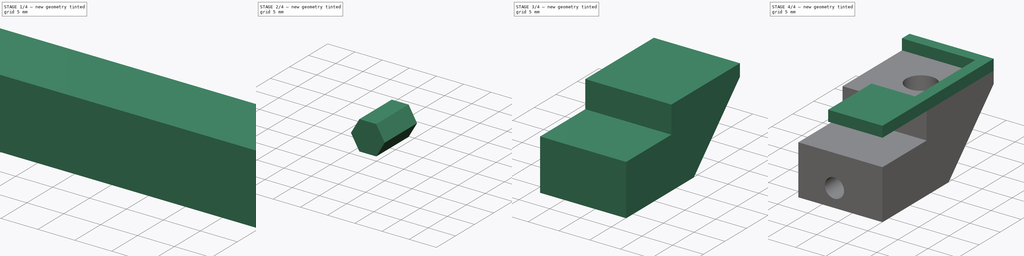
[diagram: build sequence overview — one tinted view per stage of 4, left to right]
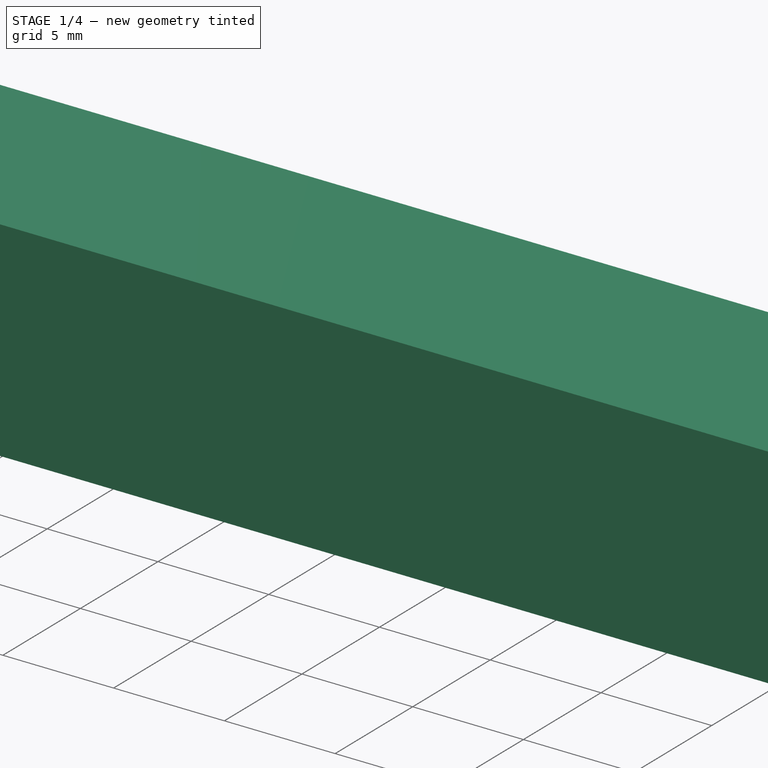
[diagram: stage 1 of 4 — iso view after this stage's code; geometry added in this stage tinted green]
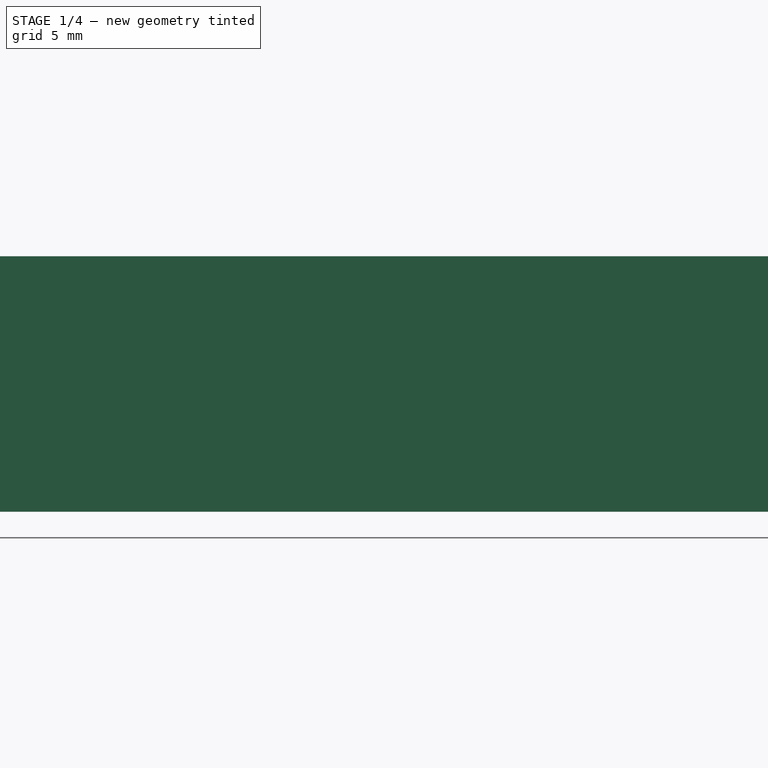
[diagram: stage 1 of 4 — front view after this stage's code; geometry added in this stage tinted green]
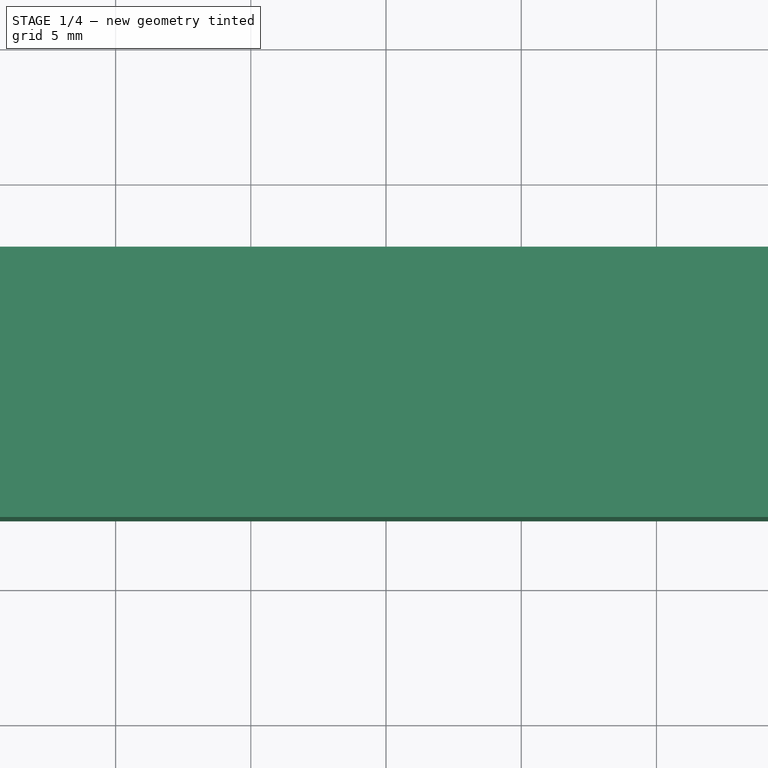
[diagram: stage 1 of 4 — top view after this stage's code; geometry added in this stage tinted green]
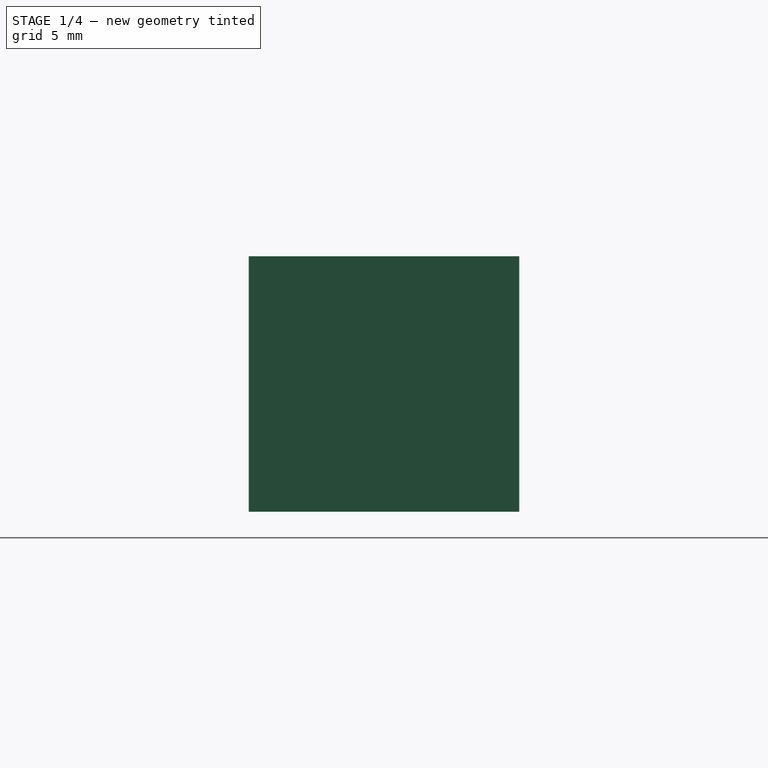
[diagram: stage 1 of 4 — right view after this stage's code; geometry added in this stage tinted green]
FCSTD DOCUMENT  (FreeCAD 1.0R39319 (Git))
Label: cartridge90
License: All rights reserved
LicenseURL: https://en.wikipedia.org/wiki/All_rights_reserved
objects: Sketcher::SketchObject×10, Part::Extrusion×10, Part::MultiFuse×1, Part::Cut×1
note: 32 computed .brp shape members not serialized (recipe doc carries the construction recipe); baked Part::Feature solids carry a one-line shape summary decoded from their .brp

FEATURE [Sketcher::SketchObject] Sketch
  ArcFitTolerance = 1e-06
  FullyConstrained = true
  MakeInternals = false
  sketch-geometry (8):
    g0: Circle CenterX=0 CenterY=0 CenterZ=0 NormalX=0 NormalY=0 NormalZ=1 AngleXU=0 Radius=1.6
    g1: LineSegment StartX=-3.81 StartY=6.9575 StartZ=0 EndX=-3.81 EndY=-6.9575 EndZ=0
    g2: LineSegment StartX=-3.81 StartY=-6.9575 StartZ=0 EndX=73.66 EndY=-6.9575 EndZ=0
    g3: LineSegment StartX=73.66 StartY=-6.9575 StartZ=0 EndX=73.66 EndY=6.9575 EndZ=0
    g4: LineSegment StartX=73.66 StartY=6.9575 StartZ=0 EndX=-3.81 EndY=6.9575 EndZ=0
    g5: LineSegment [constr] StartX=0 StartY=0 StartZ=0 EndX=-3.81 EndY=0 EndZ=0
    g6: Circle CenterX=69.85 CenterY=0 CenterZ=0 NormalX=0 NormalY=0 NormalZ=1 AngleXU=0 Radius=1.6
    g7: LineSegment [constr] StartX=69.85 StartY=0 StartZ=0 EndX=73.66 EndY=0 EndZ=0
  constraints (22):
    c: Diameter(g0) = 3.2
    c: Coincident(g0,g-1)
    c: Coincident(g1,g2)
    c: Coincident(g2,g3)
    c: Coincident(g3,g4)
    c: Coincident(g4,g1)
    c: Vertical(g1)
    c: Vertical(g3)
    c: Horizontal(g2)
    c: Horizontal(g4)
    c: Distance(g1,g3) = 77.47
    c: Distance(g2,g4) = 13.915
    c: Coincident(g5,g0)
    c: Symmetric(g1,g1,g5)
    c: Horizontal(g5)
    c: DistanceX(g5,g5) = 3.81
    c: Equal(g6,g0)
    c: Coincident(g7,g6)
    c: PointOnObject(g7,g3)
    c: Horizontal(g7)
    c: Equal(g7,g5)
    c: Horizontal(g7,g5)
FEATURE [Part::Extrusion] Extrude
  Base = -> Sketch
  Dir = (0,0,1)
  DirMode = 2
  FaceMakerClass = Part::FaceMakerBullseye
  FaceMakerMode = 3
  LengthFwd = 1.6
  LengthRev = 0
  Solid = true
  Symmetric = false
FEATURE [Sketcher::SketchObject] Sketch001
  ArcFitTolerance = 1e-06
  AttachmentSupport = -> [Extrude]
  ExternalGeometry = -> [Extrude]
  FullyConstrained = true
  MakeInternals = false
  MapMode = 5
  Placement = pos=(0,0,1.6) rot=(0,0,1;0rad)
  sketch-geometry (6):
    g0: LineSegment StartX=3.725 StartY=4.725 StartZ=0 EndX=3.725 EndY=-4.725 EndZ=0
    g1: LineSegment StartX=3.725 StartY=-4.725 StartZ=0 EndX=66.125 EndY=-4.725 EndZ=0
    g2: LineSegment StartX=66.125 StartY=-4.725 StartZ=0 EndX=66.125 EndY=4.725 EndZ=0
    g3: LineSegment StartX=66.125 StartY=4.725 StartZ=0 EndX=3.725 EndY=4.725 EndZ=0
    g4: LineSegment [constr] StartX=34.925 StartY=4.725 StartZ=0 EndX=34.925 EndY=6.9575 EndZ=0
    g5: LineSegment [constr] StartX=3.725 StartY=-3e-16 StartZ=0 EndX=-3.81 EndY=-3e-16 EndZ=0
  constraints (16):
    c: Coincident(g0,g1)
    c: Coincident(g1,g2)
    c: Coincident(g2,g3)
    c: Coincident(g3,g0)
    c: Vertical(g0)
    c: Vertical(g2)
    c: Horizontal(g1)
    c: Horizontal(g3)
    c: DistanceX(g3,g3) = 62.4
    c: Symmetric(g3,g3,g4)
    c: Symmetric(g0,g0,g5)
    c: Symmetric(g-4,g-3,g4)
    c: Symmetric(g-4,g-4,g5)
    c: Vertical(g4)
    c: Horizontal(g5)
    c: DistanceY(g0,g0) = 9.45
FEATURE [Part::Extrusion] Extrude001
  Base = -> Sketch001
  Dir = (0,0,1)
  DirMode = 2
  FaceMakerClass = Part::FaceMakerBullseye
  FaceMakerMode = 3
  LengthFwd = 10
  LengthRev = 0
  Solid = true
  Symmetric = false
FEATURE [Sketcher::SketchObject] Sketch002
  ArcFitTolerance = 1e-06
  AttachmentOffset = pos=(0,0,0.5) rot=(0,0,1;0rad)
  AttachmentSupport = -> [Extrude]
  ExternalGeometry = -> [Extrude001,Extrude]
  FullyConstrained = true
  MakeInternals = false
  MapMode = 5
  Placement = pos=(0,-7.4575,1e-16) rot=(1,0,0;1.5708rad)
  sketch-geometry (5):
    g0: LineSegment StartX=3.725 StartY=5.525 StartZ=0 EndX=3.725 EndY=-3.925 EndZ=0
    g1: LineSegment StartX=3.725 StartY=-3.925 StartZ=0 EndX=66.125 EndY=-3.925 EndZ=0
    g2: LineSegment StartX=66.125 StartY=-3.925 StartZ=0 EndX=66.125 EndY=5.525 EndZ=0
    g3: LineSegment StartX=66.125 StartY=5.525 StartZ=0 EndX=3.725 EndY=5.525 EndZ=0
    g4: LineSegment [constr] StartX=3.725 StartY=0.8 StartZ=0 EndX=-3.81 EndY=0.8 EndZ=0
  constraints (14):
    c: Coincident(g0,g1)
    c: Coincident(g1,g2)
    c: Coincident(g2,g3)
    c: Coincident(g3,g0)
    c: Vertical(g0)
    c: Vertical(g2)
    c: Horizontal(g1)
    c: Horizontal(g3)
    c: Distance(g0,g2) = 62.4
    c: Distance(g1,g3) = 9.45
    c: Vertical(g0,g-3)
    c: Symmetric(g0,g0,g4)
    c: Symmetric(g-4,g-4,g4)
    c: Horizontal(g4)
FEATURE [Part::Extrusion] Extrude002
  Base = -> Sketch002
  Dir = (0,-1,2e-16)
  DirMode = 2
  FaceMakerClass = Part::FaceMakerBullseye
  FaceMakerMode = 3
  LengthFwd = 10
  LengthRev = 0
  Solid = true
  Symmetric = false
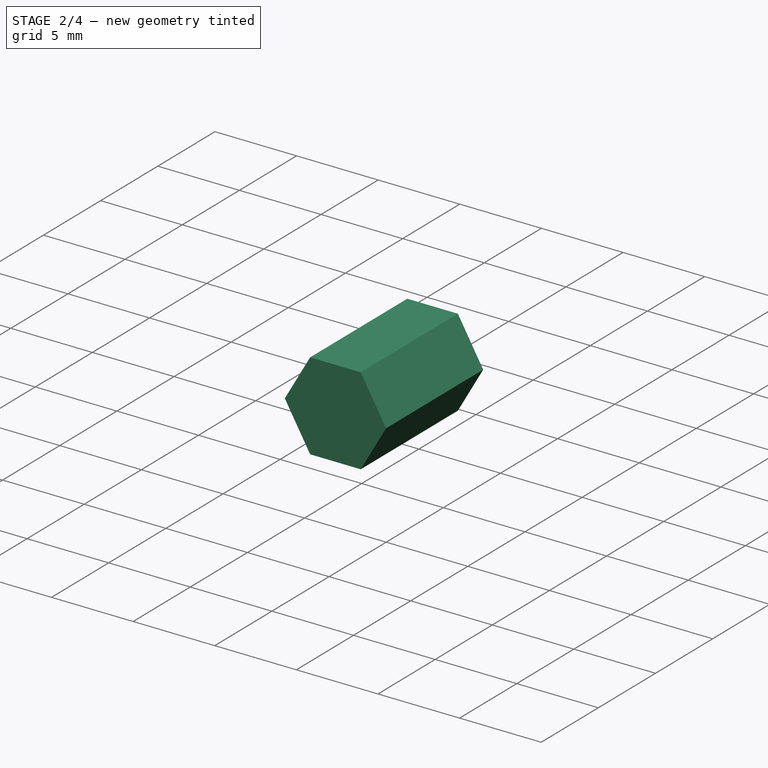
[diagram: stage 2 of 4 — iso view after this stage's code; geometry added in this stage tinted green]
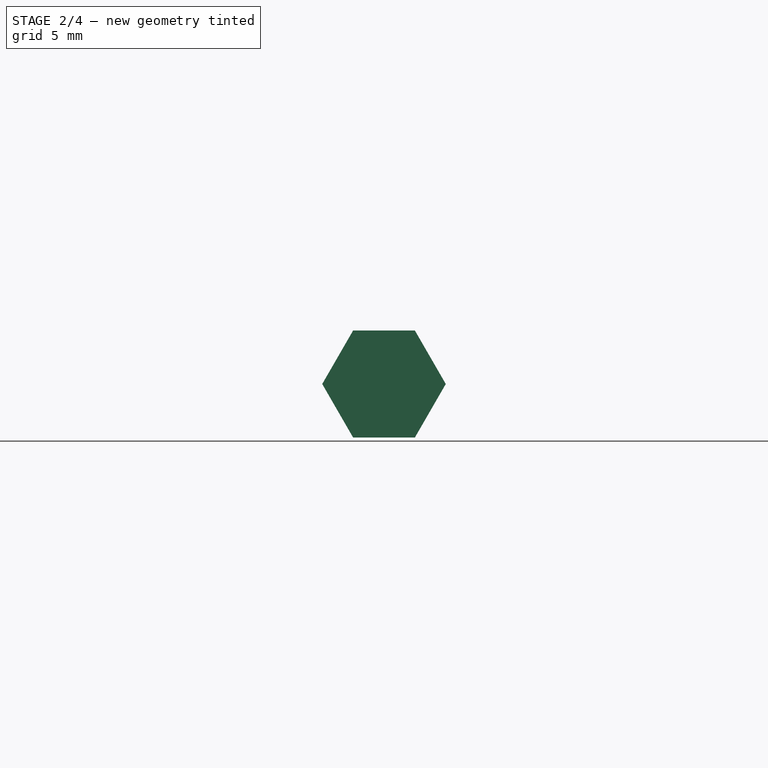
[diagram: stage 2 of 4 — front view after this stage's code; geometry added in this stage tinted green]
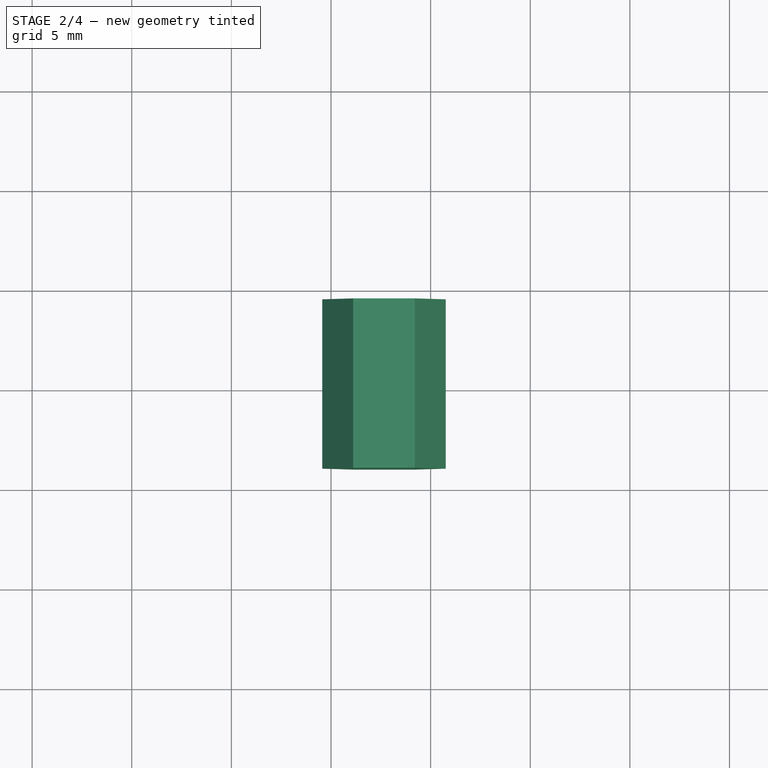
[diagram: stage 2 of 4 — top view after this stage's code; geometry added in this stage tinted green]
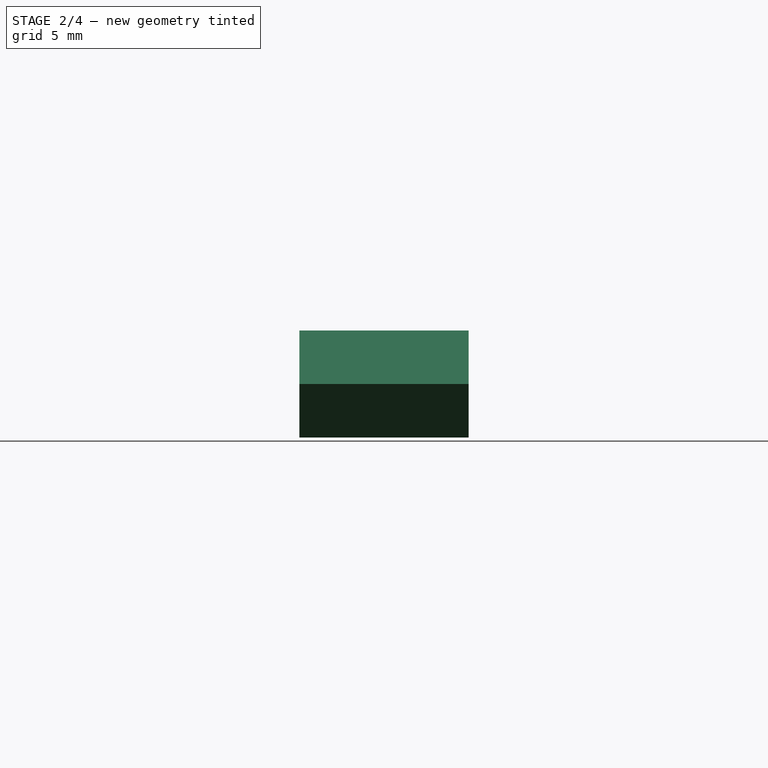
[diagram: stage 2 of 4 — right view after this stage's code; geometry added in this stage tinted green]
FEATURE [Sketcher::SketchObject] Sketch003
  ArcFitTolerance = 1e-06
  AttachmentSupport = -> [Extrude002]
  ExternalGeometry = -> [Extrude002]
  FullyConstrained = true
  MakeInternals = false
  MapMode = 5
  Placement = pos=(0,-17.4575,0) rot=(1,0,0;1.5708rad)
  sketch-geometry (15):
    g0: LineSegment StartX=-15.075 StartY=26.075 StartZ=0 EndX=-15.075 EndY=-63.925 EndZ=0
    g1: LineSegment StartX=-15.075 StartY=-63.925 StartZ=0 EndX=84.925 EndY=-63.925 EndZ=0
    g2: LineSegment StartX=84.925 StartY=-63.925 StartZ=0 EndX=84.925 EndY=26.075 EndZ=0
    g3: LineSegment StartX=84.925 StartY=26.075 StartZ=0 EndX=-15.075 EndY=26.075 EndZ=0
    g4: LineSegment [constr] StartX=34.925 StartY=-3.925 StartZ=0 EndX=34.925 EndY=-63.925 EndZ=0
    g5: Circle CenterX=2.19 CenterY=11.3 CenterZ=0 NormalX=0 NormalY=0 NormalZ=1 AngleXU=0 Radius=1.6
    g6: Circle CenterX=2.19 CenterY=-9.7 CenterZ=0 NormalX=0 NormalY=0 NormalZ=1 AngleXU=0 Radius=1.6
    g7: Circle CenterX=67.66 CenterY=11.3 CenterZ=0 NormalX=0 NormalY=0 NormalZ=1 AngleXU=0 Radius=1.6
    g8: Circle CenterX=67.66 CenterY=-9.7 CenterZ=0 NormalX=0 NormalY=0 NormalZ=1 AngleXU=0 Radius=1.6
    g9: LineSegment [constr] StartX=2.19 StartY=11.3 StartZ=0 EndX=2.19 EndY=-9.7 EndZ=0
    g10: LineSegment [constr] StartX=2.19 StartY=-9.7 StartZ=0 EndX=67.66 EndY=-9.7 EndZ=0
    g11: LineSegment [constr] StartX=67.66 StartY=-9.7 StartZ=0 EndX=67.66 EndY=11.3 EndZ=0
    g12: LineSegment [constr] StartX=67.66 StartY=11.3 StartZ=0 EndX=2.19 EndY=11.3 EndZ=0
    g13: LineSegment [constr] StartX=34.925 StartY=-3.925 StartZ=0 EndX=34.925 EndY=11.3 EndZ=0
    g14: LineSegment [constr] StartX=3.725 StartY=0.8 StartZ=0 EndX=2.19 EndY=0.8 EndZ=0
  constraints (38):
    c: Coincident(g0,g1)
    c: Coincident(g1,g2)
    c: Coincident(g2,g3)
    c: Coincident(g3,g0)
    c: Vertical(g0)
    c: Vertical(g2)
    c: Horizontal(g1)
    c: Horizontal(g3)
    c: Distance(g0,g2) = 100
    c: Distance(g1,g3) = 90
    c: Symmetric(g-3,g-3,g4)
    c: Symmetric(g1,g1,g4)
    c: Vertical(g4)
    c: DistanceY(g4,g4) = 60
    c: Coincident(g9,g10)
    c: Coincident(g10,g11)
    c: Coincident(g11,g12)
    c: Coincident(g12,g9)
    c: Vertical(g9)
    c: Vertical(g11)
    c: Horizontal(g10)
    c: Horizontal(g12)
    c: Coincident(g9,g5)
    c: Coincident(g10,g8)
    c: Coincident(g7,g11)
    c: Coincident(g9,g6)
    c: Diameter(g5) = 3.2
    c: Equal(g5,g6)
    c: Equal(g6,g7)
    c: Equal(g7,g8)
    c: DistanceX(g12,g12) = 65.47
    c: DistanceY(g9,g9) = 21
    c: Coincident(g13,g4)
    c: Symmetric(g12,g12,g13)
    c: Symmetric(g-4,g-4,g14)
    c: Symmetric(g9,g9,g14)
    c: Vertical(g13)
    c: Horizontal(g14)
FEATURE [Part::Extrusion] Extrude003
  Base = -> Sketch003
  Dir = (0,-1,2e-16)
  DirMode = 2
  FaceMakerClass = Part::FaceMakerBullseye
  FaceMakerMode = 3
  LengthFwd = 1.6
  LengthRev = 0
  Solid = true
  Symmetric = false
FEATURE [Sketcher::SketchObject] Sketch008
  ArcFitTolerance = 1e-06
  AttachmentSupport = -> [Extrude004]
  ExternalGeometry = -> [Extrude,Extrude003]
  FullyConstrained = true
  MakeInternals = false
  MapMode = 5
  Placement = pos=(0,-17.4575,0) rot=(1,0,0;1.5708rad)
  sketch-geometry (1):
    g0: Circle CenterX=67.66 CenterY=-9.7 CenterZ=0 NormalX=0 NormalY=0 NormalZ=1 AngleXU=0 Radius=1.6
  constraints (2):
    c: Coincident(g0,g-4)
    c: Equal(g-4,g0)
FEATURE [Part::Extrusion] Extrude008
  Base = -> Sketch008
  Dir = (0,-1,2e-16)
  DirMode = 2
  FaceMakerClass = Part::FaceMakerBullseye
  FaceMakerMode = 3
  LengthFwd = 0
  LengthRev = 22
  Solid = true
  Symmetric = false
FEATURE [Sketcher::SketchObject] Sketch009
  ArcFitTolerance = 1e-06
  AttachmentSupport = -> [Extrude008]
  ExternalGeometry = -> [Extrude008]
  FullyConstrained = true
  MakeInternals = false
  MapMode = 5
  Placement = pos=(0,4.5425,-1.5e-15) rot=(0,0.707107,0.707107;3.14159rad)
  sketch-geometry (7):
    g0: LineSegment StartX=-64.56 StartY=-9.7 StartZ=0 EndX=-66.11 EndY=-7.01532 EndZ=0
    g1: LineSegment StartX=-66.11 StartY=-7.01532 StartZ=0 EndX=-69.21 EndY=-7.01532 EndZ=0
    g2: LineSegment StartX=-69.21 StartY=-7.01532 StartZ=0 EndX=-70.76 EndY=-9.7 EndZ=0
    g3: LineSegment StartX=-70.76 StartY=-9.7 StartZ=0 EndX=-69.21 EndY=-12.3847 EndZ=0
    g4: LineSegment StartX=-69.21 StartY=-12.3847 StartZ=0 EndX=-66.11 EndY=-12.3847 EndZ=0
    g5: LineSegment StartX=-66.11 StartY=-12.3847 StartZ=0 EndX=-64.56 EndY=-9.7 EndZ=0
    g6: Circle [constr] CenterX=-67.66 CenterY=-9.7 CenterZ=0 NormalX=0 NormalY=0 NormalZ=1 AngleXU=0 Radius=3.1
  constraints (16):
    c: Coincident(g0,g1)
    c: Coincident(g1,g2)
    c: Coincident(g2,g3)
    c: Coincident(g3,g4)
    c: Coincident(g4,g5)
    c: Coincident(g5,g0)
    c: Equal(g0, g1-g5) x5
    c: PointOnObject(g0,g6)
    c: PointOnObject(g1,g6)
    c: PointOnObject(g2,g6)
    c: PointOnObject(g3,g6)
    c: PointOnObject(g4,g6)
    c: PointOnObject(g5,g6)
    c: Coincident(g6,g-3)
    c: Horizontal(g1)
    c: Diameter(g6) = 6.2
FEATURE [Part::Extrusion] Extrude009
  Base = -> Sketch009
  Dir = (0,1,-2e-16)
  DirMode = 2
  FaceMakerClass = Part::FaceMakerBullseye
  FaceMakerMode = 3
  LengthFwd = 0
  LengthRev = 8.5
  Solid = true
  Symmetric = false
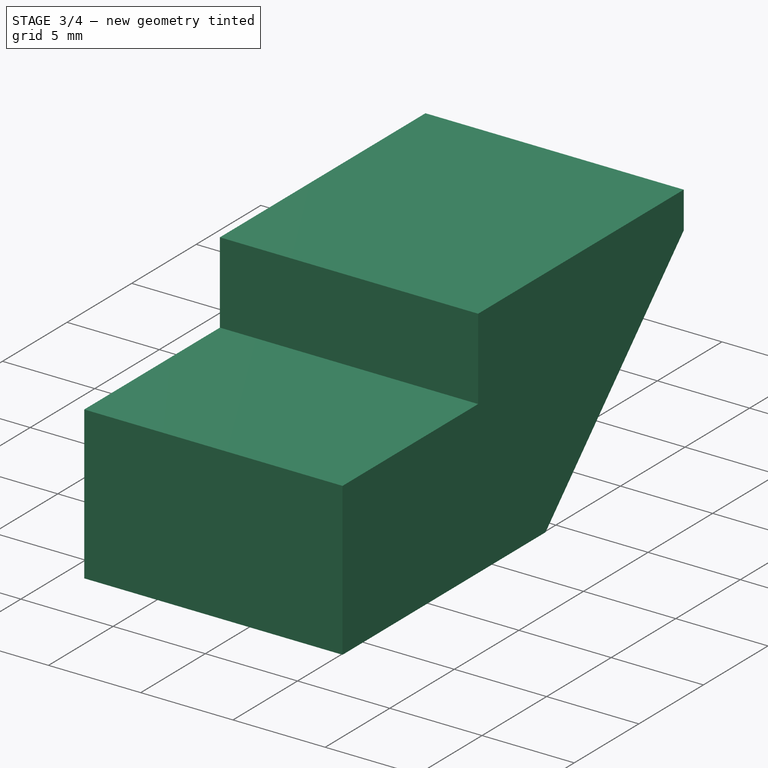
[diagram: stage 3 of 4 — iso view after this stage's code; geometry added in this stage tinted green]
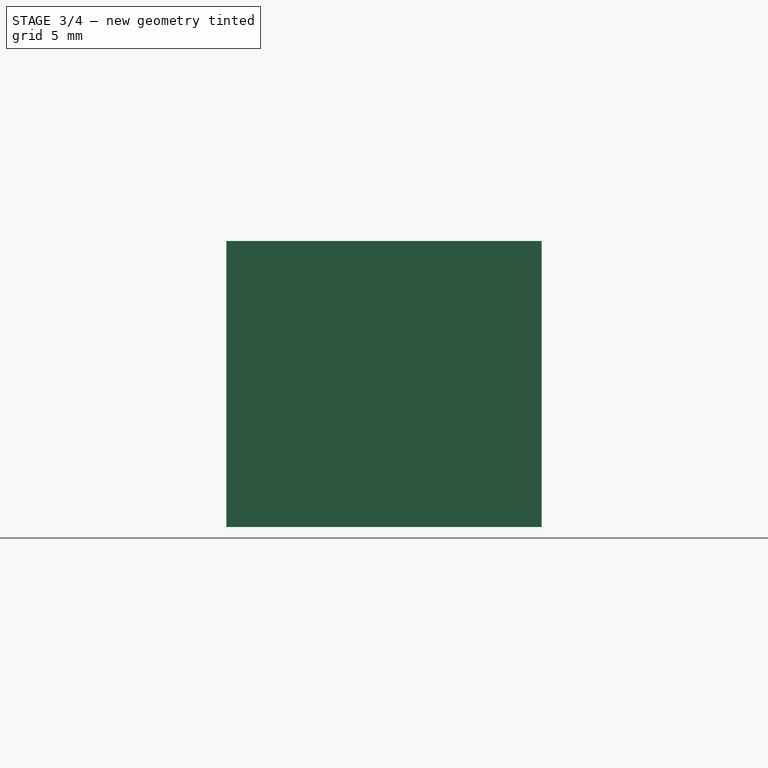
[diagram: stage 3 of 4 — front view after this stage's code; geometry added in this stage tinted green]
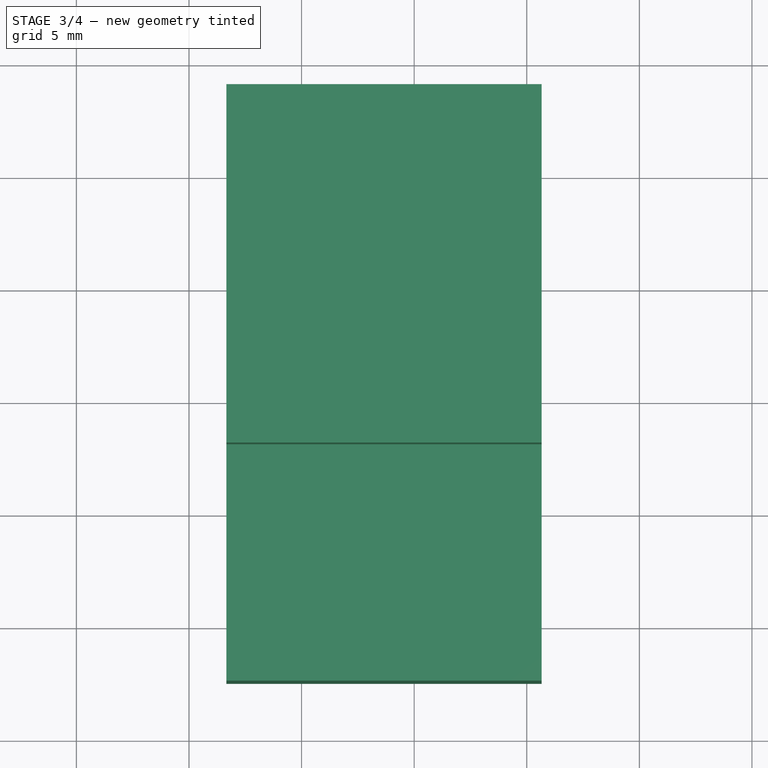
[diagram: stage 3 of 4 — top view after this stage's code; geometry added in this stage tinted green]
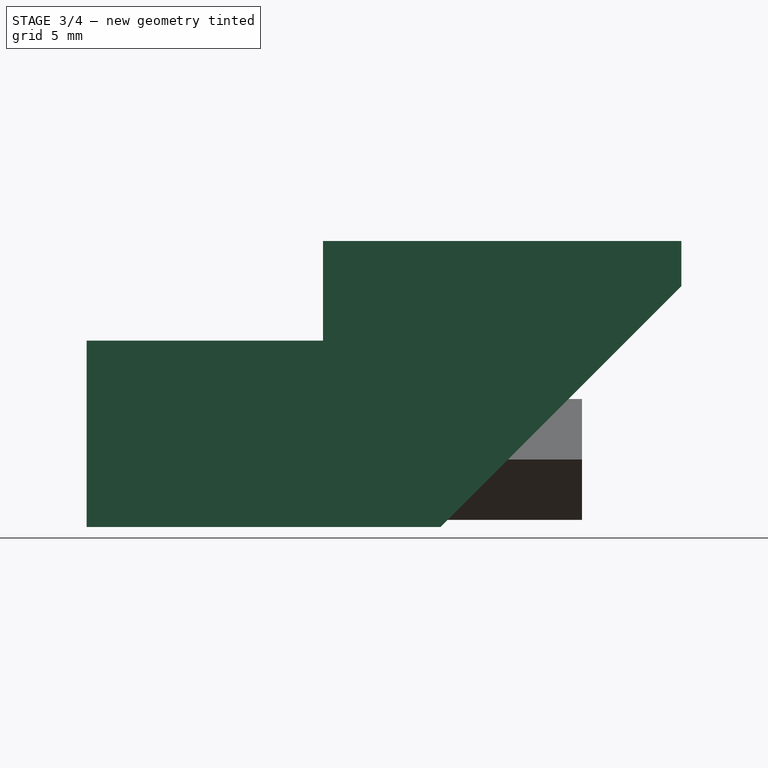
[diagram: stage 3 of 4 — right view after this stage's code; geometry added in this stage tinted green]
FEATURE [Sketcher::SketchObject] Sketch004
  ArcFitTolerance = 1e-06
  AttachmentSupport = -> [Extrude]
  ExternalGeometry = -> [Extrude,Extrude002,Extrude003]
  FullyConstrained = true
  MakeInternals = false
  MapMode = 5
  Placement = pos=(73.66,0,0) rot=(0.57735,0.57735,0.57735;2.0944rad)
  sketch-geometry (10):
    g0: LineSegment StartX=8.9575 StartY=0 StartZ=0 EndX=8.9575 EndY=-2 EndZ=0
    g1: LineSegment StartX=8.9575 StartY=-2 StartZ=0 EndX=-1.7425 EndY=-12.7 EndZ=0
    g2: LineSegment StartX=-1.7425 StartY=-12.7 StartZ=0 EndX=-17.4575 EndY=-12.7 EndZ=0
    g3: LineSegment StartX=-17.4575 StartY=-12.7 StartZ=0 EndX=-17.4575 EndY=-4.425 EndZ=0
    g4: LineSegment StartX=-17.4575 StartY=-4.425 StartZ=0 EndX=-6.9575 EndY=-4.425 EndZ=0
    g5: LineSegment StartX=-6.9575 StartY=-4.425 StartZ=0 EndX=-6.9575 EndY=0 EndZ=0
    g6: LineSegment StartX=-6.9575 StartY=0 StartZ=0 EndX=8.9575 EndY=0 EndZ=0
    g7: LineSegment [constr] StartX=-7.4575 StartY=0 StartZ=0 EndX=-6.9575 EndY=0 EndZ=0
    g8: LineSegment [constr] StartX=-7.4575 StartY=-3.925 StartZ=0 EndX=-7.4575 EndY=-4.425 EndZ=0
    g9: LineSegment [constr] StartX=-6.9575 StartY=0.8 StartZ=0 EndX=-6.9575 EndY=-12.7 EndZ=0
  constraints (30):
    c: Vertical(g0)
    c: Coincident(g1,g0)
    c: Coincident(g2,g1)
    c: Coincident(g3,g2)
    c: Coincident(g4,g3)
    c: Coincident(g5,g4)
    c: Vertical(g5)
    c: Coincident(g6,g5)
    c: Coincident(g6,g0)
    c: Horizontal(g-4,g0)
    c: Horizontal(g6)
    c: Vertical(g-3,g5)
    c: Vertical(g3)
    c: Horizontal(g4)
    c: PointOnObject(g7,g-5)
    c: Coincident(g7,g5)
    c: Horizontal(g7)
    c: Coincident(g8,g-5)
    c: PointOnObject(g8,g4)
    c: Vertical(g8)
    c: Equal(g8,g7)
    c: PointOnObject(g3,g-6)
    c: Symmetric(g-7,g-7,g9)
    c: PointOnObject(g9,g2)
    c: Vertical(g9)
    c: DistanceY(g9,g9) = 13.5
    c: Horizontal(g2)
    c: Angle(g1,g2) = 2.35619
    c: DistanceX(g-4,g0) = 2
    c: DistanceY(g0,g0) = 2
FEATURE [Part::Extrusion] Extrude004
  Base = -> Sketch004
  Dir = (1,0,0)
  DirMode = 2
  FaceMakerClass = Part::FaceMakerBullseye
  FaceMakerMode = 3
  LengthFwd = 2
  LengthRev = 12
  Solid = true
  Symmetric = false
FEATURE [Sketcher::SketchObject] Sketch007
  ArcFitTolerance = 1e-06
  AttachmentSupport = -> [Extrude004]
  ExternalGeometry = -> [Extrude]
  FullyConstrained = true
  MakeInternals = false
  MapMode = 5
  sketch-geometry (1):
    g0: Circle CenterX=69.85 CenterY=0 CenterZ=0 NormalX=0 NormalY=0 NormalZ=1 AngleXU=0 Radius=2.5
  constraints (2):
    c: Coincident(g0,g-3)
    c: Diameter(g0) = 5
FEATURE [Part::Extrusion] Extrude007
  Base = -> Sketch007
  Dir = (0,0,1)
  DirMode = 2
  FaceMakerClass = Part::FaceMakerBullseye
  FaceMakerMode = 3
  LengthFwd = 0
  LengthRev = 6
  Solid = true
  Symmetric = false
FEATURE [Part::MultiFuse] Fusion
  Refine = true
  Shapes = -> [Extrude007,Extrude008,Extrude009]
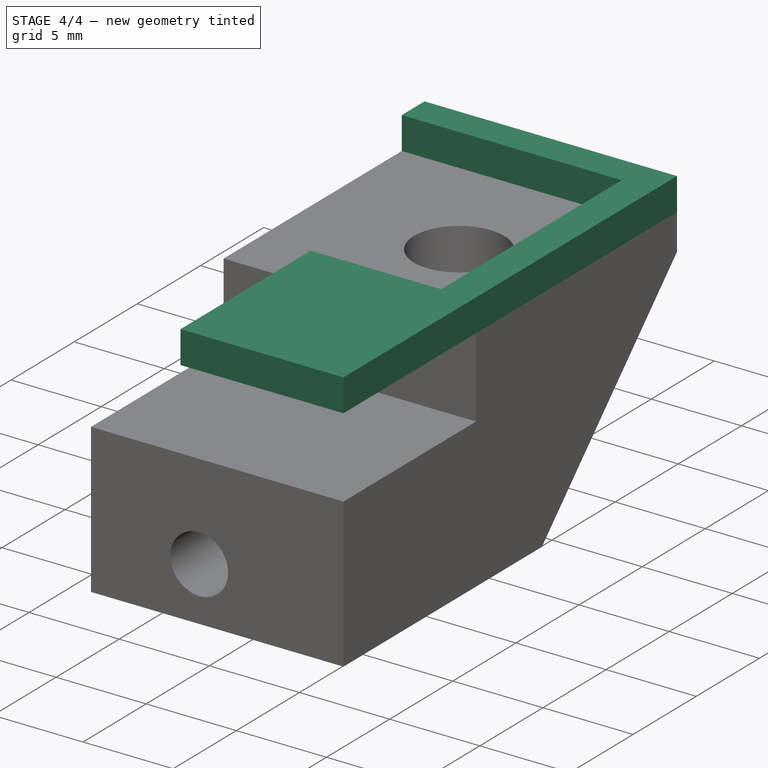
[diagram: stage 4 of 4 — iso view after this stage's code; geometry added in this stage tinted green]
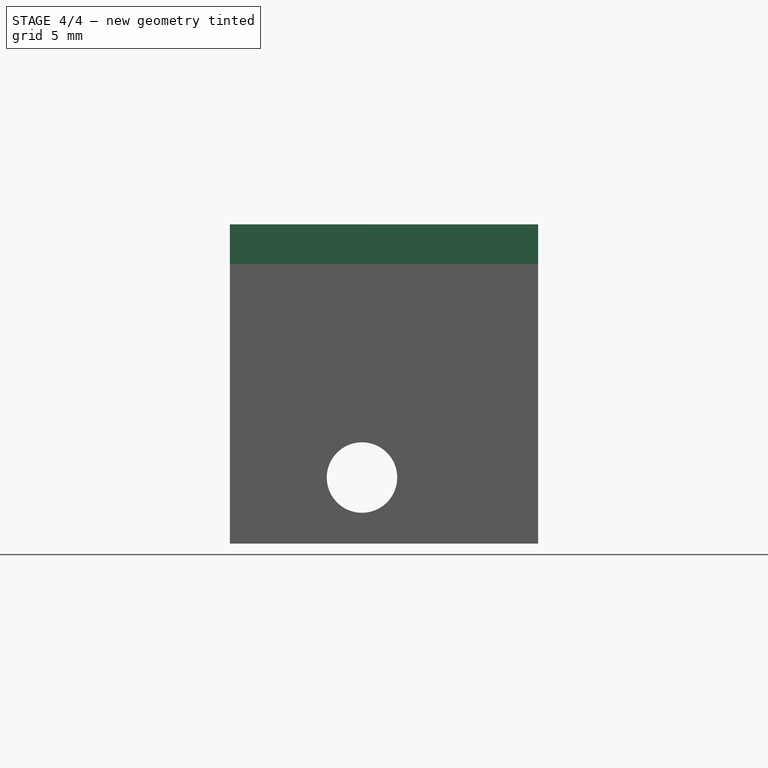
[diagram: stage 4 of 4 — front view after this stage's code; geometry added in this stage tinted green]
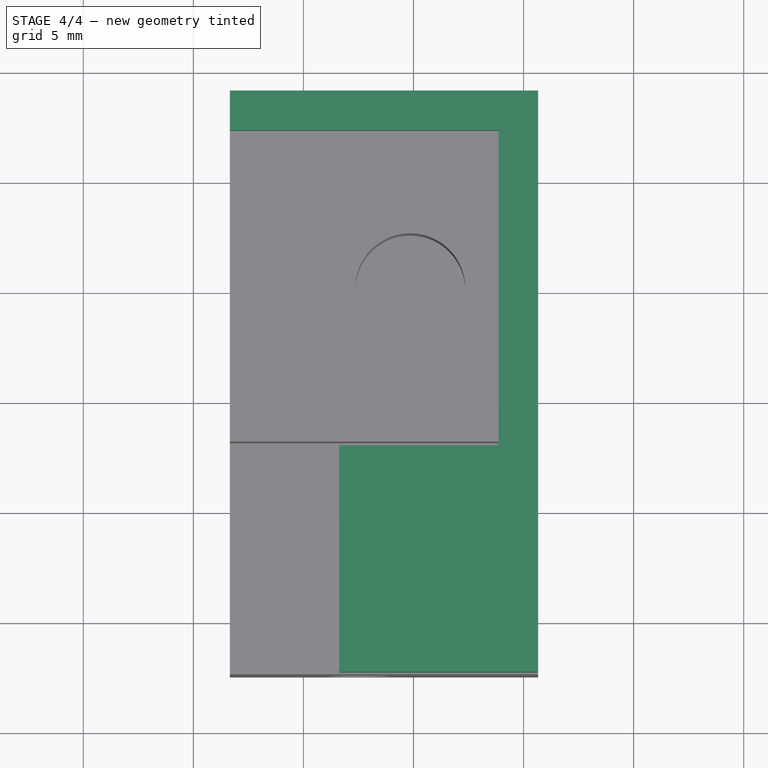
[diagram: stage 4 of 4 — top view after this stage's code; geometry added in this stage tinted green]
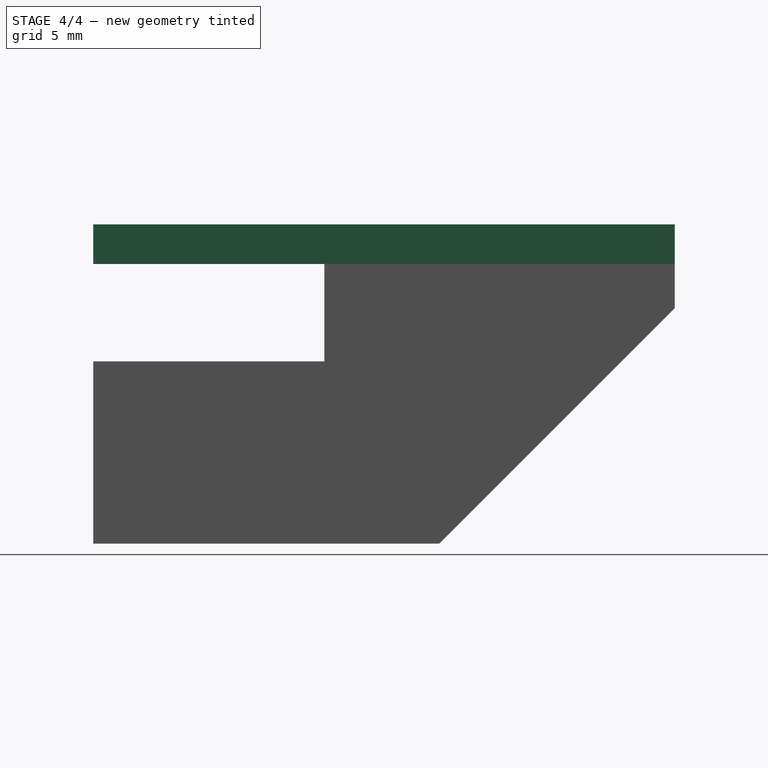
[diagram: stage 4 of 4 — right view after this stage's code; geometry added in this stage tinted green]
FEATURE [Sketcher::SketchObject] Sketch005
  ArcFitTolerance = 1e-06
  AttachmentSupport = -> [Extrude004]
  ExternalGeometry = -> [Extrude004,Extrude002]
  FullyConstrained = true
  MakeInternals = false
  MapMode = 5
  Placement = pos=(0,0,-4.425) rot=(0,0,1;0rad)
  sketch-geometry (4):
    g0: LineSegment StartX=66.625 StartY=-17.4575 StartZ=0 EndX=75.66 EndY=-17.4575 EndZ=0
    g1: LineSegment StartX=75.66 StartY=-17.4575 StartZ=0 EndX=75.66 EndY=-6.9575 EndZ=0
    g2: LineSegment StartX=75.66 StartY=-6.9575 StartZ=0 EndX=66.625 EndY=-6.9575 EndZ=0
    g3: LineSegment StartX=66.625 StartY=-6.9575 StartZ=0 EndX=66.625 EndY=-17.4575 EndZ=0
  constraints (11):
    c: Coincident(g0,g1)
    c: Coincident(g1,g2)
    c: Coincident(g2,g3)
    c: Coincident(g3,g0)
    c: Horizontal(g0)
    c: Horizontal(g2)
    c: Vertical(g1)
    c: Vertical(g3)
    c: Coincident(g0,g-3)
    c: DistanceX(g-4,g0) = 0.5
    c: Horizontal(g-3,g1)
FEATURE [Part::Extrusion] Extrude005
  Base = -> Sketch005
  Dir = (0,0,1)
  DirMode = 2
  FaceMakerClass = Part::FaceMakerBullseye
  FaceMakerMode = 3
  LengthFwd = 4.43
  LengthRev = 0
  Solid = true
  Symmetric = false
FEATURE [Sketcher::SketchObject] Sketch006
  ArcFitTolerance = 1e-06
  AttachmentSupport = -> [Extrude004]
  ExternalGeometry = -> [Extrude004,Extrude,Extrude005]
  FullyConstrained = true
  MakeInternals = false
  MapMode = 5
  sketch-geometry (11):
    g0: LineSegment StartX=61.66 StartY=8.9575 StartZ=0 EndX=75.66 EndY=8.9575 EndZ=0
    g1: LineSegment StartX=75.66 StartY=8.9575 StartZ=0 EndX=75.66 EndY=-17.4575 EndZ=0
    g2: LineSegment StartX=66.625 StartY=-17.4575 StartZ=0 EndX=75.66 EndY=-17.4575 EndZ=0
    g3: LineSegment StartX=66.625 StartY=-17.4575 StartZ=0 EndX=66.625 EndY=-7.1575 EndZ=0
    g4: LineSegment StartX=66.625 StartY=-7.1575 StartZ=0 EndX=73.86 EndY=-7.1575 EndZ=0
    g5: LineSegment StartX=73.86 StartY=-7.1575 StartZ=0 EndX=73.86 EndY=7.1575 EndZ=0
    g6: LineSegment StartX=73.86 StartY=7.1575 StartZ=0 EndX=61.66 EndY=7.1575 EndZ=0
    g7: LineSegment StartX=61.66 StartY=7.1575 StartZ=0 EndX=61.66 EndY=8.9575 EndZ=0
    g8: LineSegment [constr] StartX=73.66 StartY=6.9575 StartZ=0 EndX=73.66 EndY=7.1575 EndZ=0
    g9: LineSegment [constr] StartX=73.66 StartY=6.9575 StartZ=0 EndX=73.86 EndY=6.9575 EndZ=0
    g10: LineSegment [constr] StartX=73.66 StartY=-6.9575 StartZ=0 EndX=73.66 EndY=-7.1575 EndZ=0
  constraints (30):
    c: Coincident(g0,g-3)
    c: Coincident(g0,g-3)
    c: Coincident(g1,g0)
    c: Coincident(g2,g-6)
    c: Coincident(g2,g1)
    c: Coincident(g3,g2)
    c: Coincident(g4,g3)
    c: Horizontal(g4)
    c: Coincident(g5,g4)
    c: Vertical(g5)
    c: Coincident(g6,g5)
    c: Horizontal(g6)
    c: Coincident(g7,g6)
    c: Coincident(g7,g0)
    c: Vertical(g7)
    c: Vertical(g1)
    c: Vertical(g3)
    c: Horizontal(g2)
    c: Coincident(g8,g-4)
    c: PointOnObject(g8,g6)
    c: Vertical(g8)
    c: DistanceY(g8,g8) = 0.2
    c: Coincident(g9,g8)
    c: PointOnObject(g9,g5)
    c: Horizontal(g9)
    c: Equal(g8,g9)
    c: Coincident(g10,g-5)
    c: PointOnObject(g10,g4)
    c: Vertical(g10)
    c: Equal(g10,g8)
FEATURE [Part::Extrusion] Extrude006
  Base = -> Sketch006
  Dir = (0,0,1)
  DirMode = 2
  FaceMakerClass = Part::FaceMakerBullseye
  FaceMakerMode = 3
  LengthFwd = 1.8
  LengthRev = 0
  Solid = true
  Symmetric = false
FEATURE [Part::Cut] Cut
  Base = -> Extrude004
  Refine = true
  Tool = -> Fusion
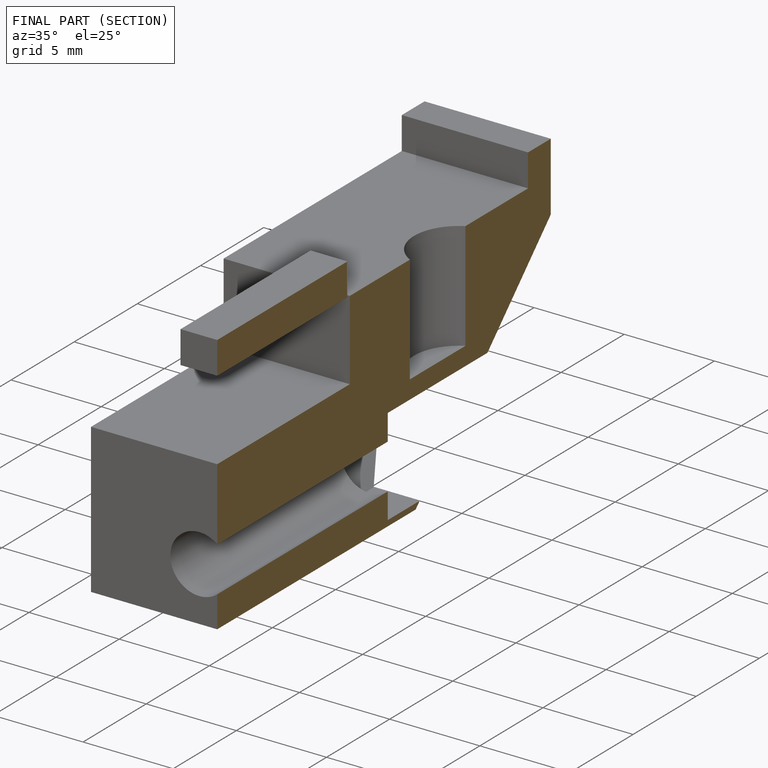
[diagram: finished part — half-section view (interior)]
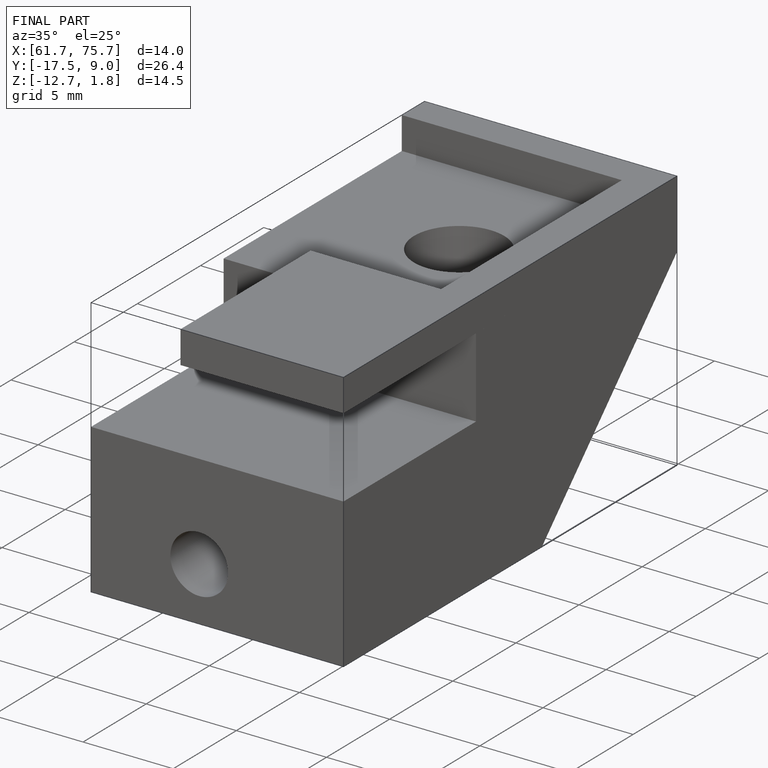
[diagram: finished part — iso view with bounding-box wireframe]
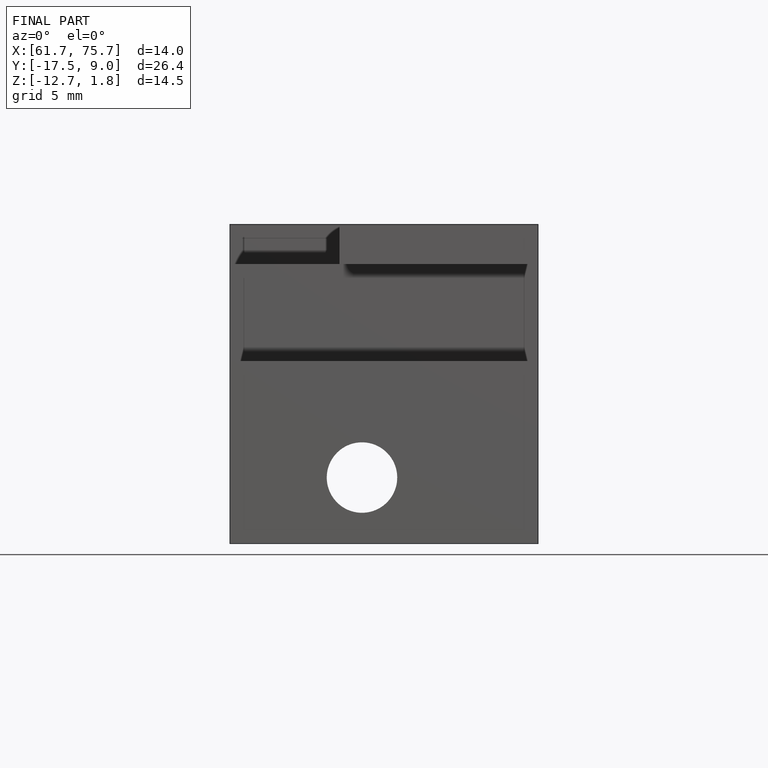
[diagram: finished part — front view with bounding-box wireframe]
